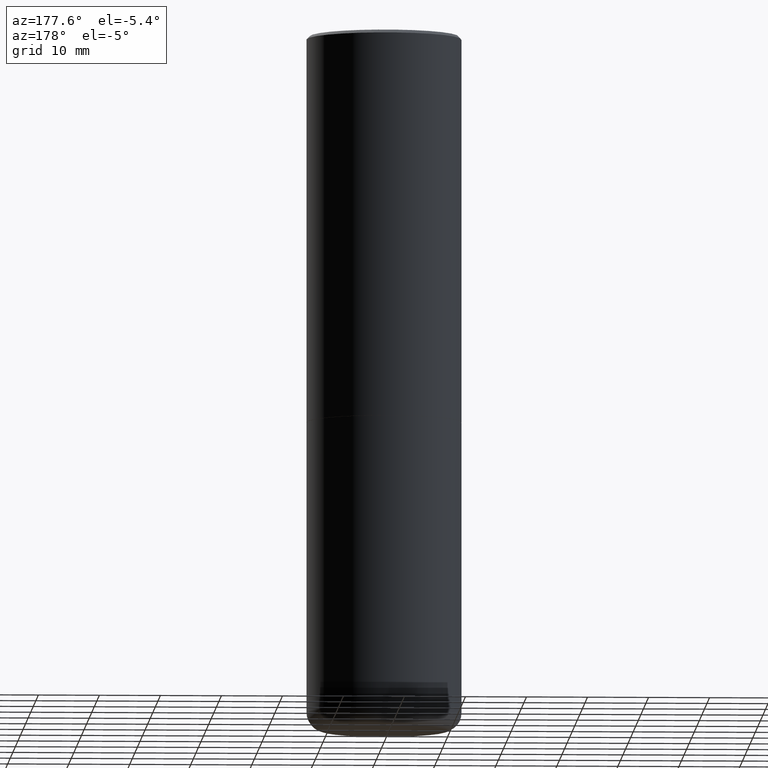
[diagram: clean part render]
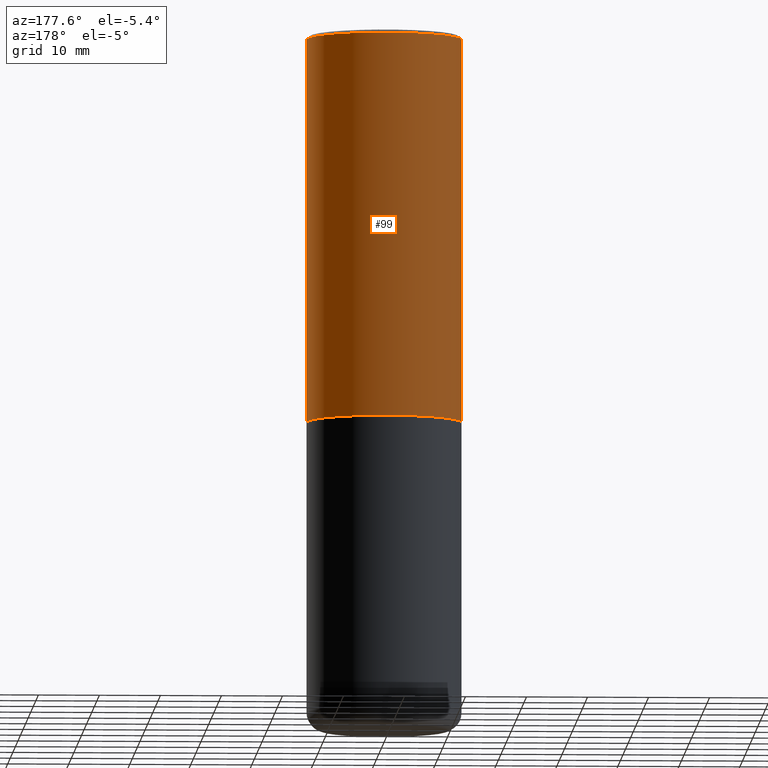
[diagram: same view with one face highlighted and labeled with its STEP entity id]
A machine part, auxiliary view. The second image highlights one B-rep face of the part: STEP entity #99.
In plain terms, the highlighted cylindrical surface (partial cylindrical patch) has radius 12.7 mm, axis along (-0, 0, 1).
Its self-contained STEP definition (entity closure, byte-faithful):
#4 = CYLINDRICAL_SURFACE ( 'NONE', #15, 0.5000000000000001110 ) ;
#15 = AXIS2_PLACEMENT_3D ( 'NONE', #353, #357, #191 ) ;
#17 = CARTESIAN_POINT ( 'NONE',  ( 4.890937612370299433E-31, -6.982962677686328587E-17, -0.02000000000000010797 ) ) ;
#22 = VERTEX_POINT ( 'NONE', #25 ) ;
#25 = CARTESIAN_POINT ( 'NONE',  ( -0.5000000000000002220, -8.448070674724393209E-16, -2.499000000000000110 ) ) ;
#68 = DIRECTION ( 'NONE',  ( 1.000000000000000000, -6.982962677686265922E-15, 0.000000000000000000 ) ) ;
#74 = CIRCLE ( 'NONE', #317, 0.5000000000000002220 ) ;
#75 = AXIS2_PLACEMENT_3D ( 'NONE', #17, #331, #68 ) ;
#80 = CARTESIAN_POINT ( 'NONE',  ( 0.5000000000000002220, -1.221669320461215845E-14, -2.499000000000000110 ) ) ;
#99 = ADVANCED_FACE ( 'NONE', ( #228 ), #4, .T. ) ;
#115 = CARTESIAN_POINT ( 'NONE',  ( 0.5000000000000001110, -3.491481338843134539E-15, 2.438088387897968457E-29 ) ) ;
#123 = ORIENTED_EDGE ( 'NONE', *, *, #181, .T. ) ;
#124 = EDGE_CURVE ( 'NONE', #22, #344, #253, .T. ) ;
#140 = CARTESIAN_POINT ( 'NONE',  ( -0.5000000000000001110, 3.421651712066270452E-15, -0.02000000000000010797 ) ) ;
#148 = ORIENTED_EDGE ( 'NONE', *, *, #405, .F. ) ;
#151 = CARTESIAN_POINT ( 'NONE',  ( 6.111226546656657010E-29, -8.725211865769021935E-15, -2.499000000000000110 ) ) ;
#178 = EDGE_LOOP ( 'NONE', ( #123, #184, #330, #148 ) ) ;
#181 = EDGE_CURVE ( 'NONE', #347, #22, #74, .T. ) ;
#184 = ORIENTED_EDGE ( 'NONE', *, *, #124, .T. ) ;
#191 = DIRECTION ( 'NONE',  ( 1.000000000000000000, -6.982962677686267499E-15, 4.876176775795935793E-29 ) ) ;
#194 = VECTOR ( 'NONE', #379, 39.37007874015748143 ) ;
#201 = EDGE_CURVE ( 'NONE', #281, #344, #352, .T. ) ;
#228 = FACE_OUTER_BOUND ( 'NONE', #178, .T. ) ;
#229 = CARTESIAN_POINT ( 'NONE',  ( -0.5000000000000001110, 3.552713678800501718E-15, -2.459467545127453732E-29 ) ) ;
#244 = VECTOR ( 'NONE', #273, 39.37007874015748143 ) ;
#253 = LINE ( 'NONE', #229, #194 ) ;
#273 = DIRECTION ( 'NONE',  ( -2.445468806185136877E-29, 3.491481338843145188E-15, 1.000000000000000000 ) ) ;
#281 = VERTEX_POINT ( 'NONE', #306 ) ;
#285 = DIRECTION ( 'NONE',  ( -2.445468806185136597E-29, 3.491481338843145583E-15, 1.000000000000000000 ) ) ;
#306 = CARTESIAN_POINT ( 'NONE',  ( 0.5000000000000001110, -3.500078625662629868E-15, -0.02000000000000010797 ) ) ;
#310 = LINE ( 'NONE', #115, #244 ) ;
#317 = AXIS2_PLACEMENT_3D ( 'NONE', #151, #285, #418 ) ;
#330 = ORIENTED_EDGE ( 'NONE', *, *, #201, .F. ) ;
#331 = DIRECTION ( 'NONE',  ( -2.445468806185136597E-29, 3.491481338843145583E-15, 1.000000000000000000 ) ) ;
#344 = VERTEX_POINT ( 'NONE', #140 ) ;
#347 = VERTEX_POINT ( 'NONE', #80 ) ;
#352 = CIRCLE ( 'NONE', #75, 0.5000000000000001110 ) ;
#353 = CARTESIAN_POINT ( 'NONE',  ( 0.000000000000000000, 0.000000000000000000, 0.000000000000000000 ) ) ;
#357 = DIRECTION ( 'NONE',  ( -2.445468806185136597E-29, 3.491481338843145583E-15, 1.000000000000000000 ) ) ;
#379 = DIRECTION ( 'NONE',  ( -2.445468806185136877E-29, 3.491481338843145188E-15, 1.000000000000000000 ) ) ;
#405 = EDGE_CURVE ( 'NONE', #347, #281, #310, .T. ) ;
#418 = DIRECTION ( 'NONE',  ( 1.000000000000000000, -6.982962677686269866E-15, 0.000000000000000000 ) ) ;